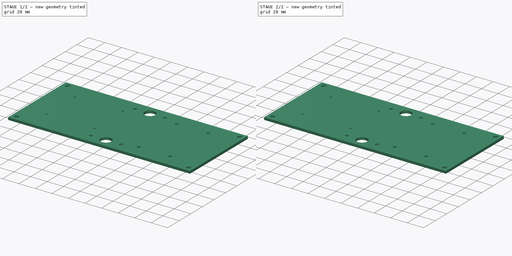
[diagram: build sequence overview — one tinted view per stage of 2, left to right]
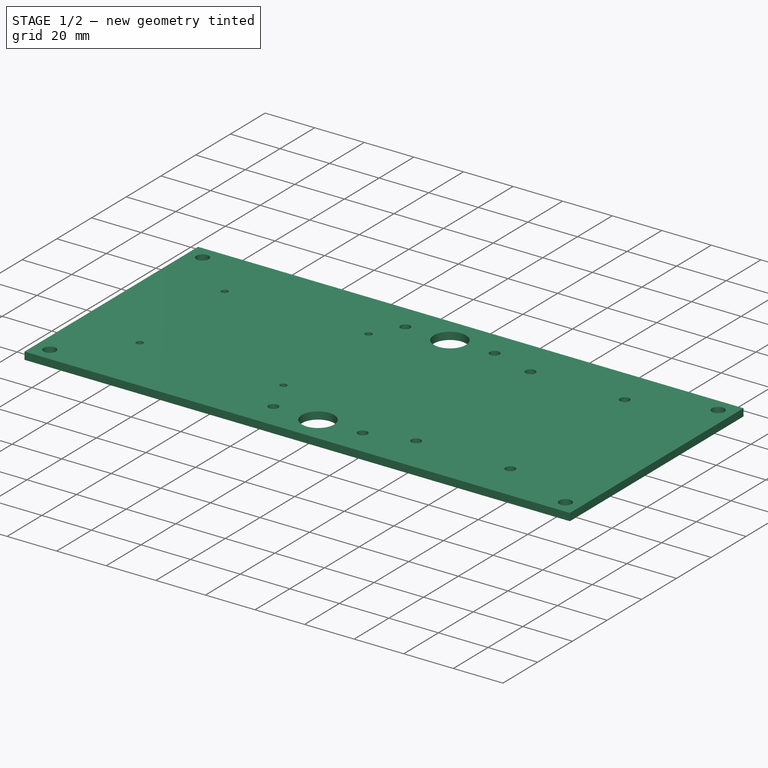
[diagram: stage 1 of 2 — iso view after this stage's code; geometry added in this stage tinted green]
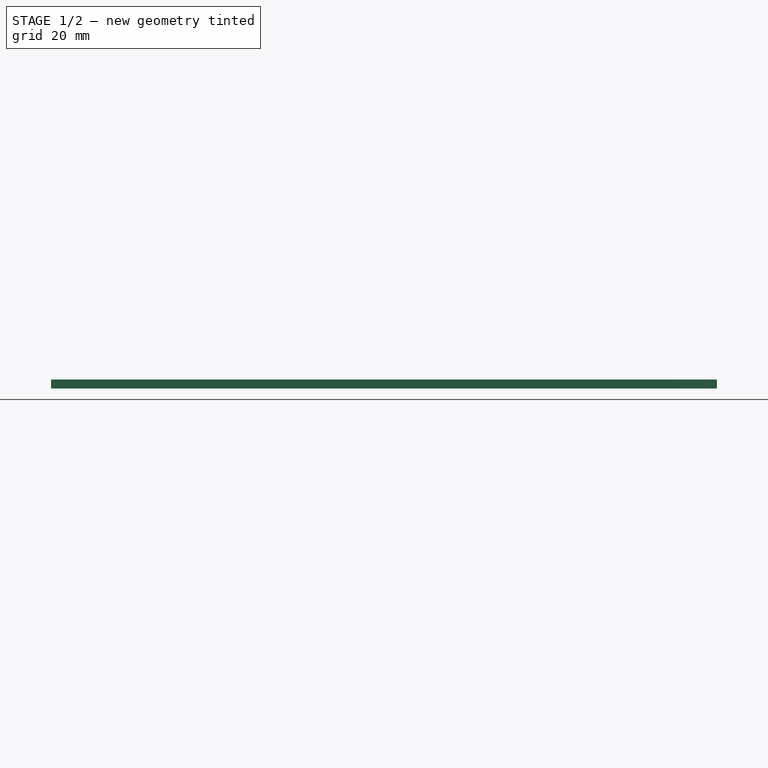
[diagram: stage 1 of 2 — front view after this stage's code; geometry added in this stage tinted green]
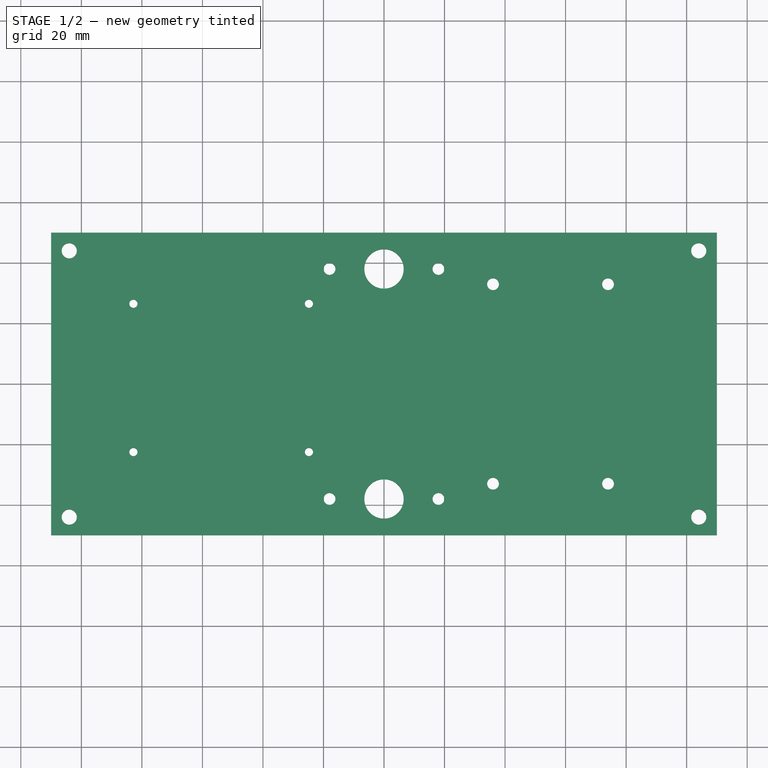
[diagram: stage 1 of 2 — top view after this stage's code; geometry added in this stage tinted green]
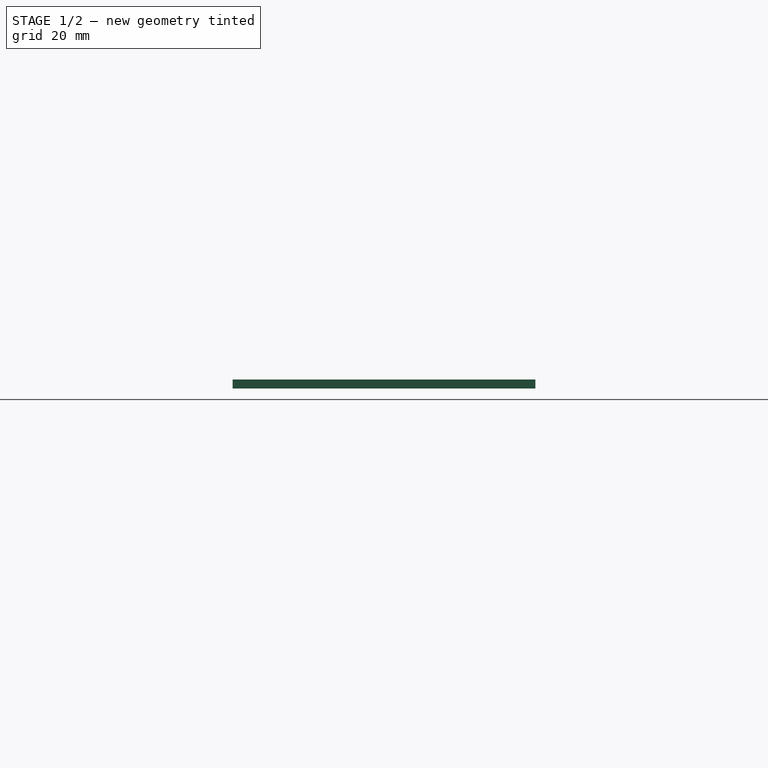
[diagram: stage 1 of 2 — right view after this stage's code; geometry added in this stage tinted green]
FCSTD DOCUMENT  (FreeCAD 1.0R39109 (Git))
Label: cam_holder_plate
License: All rights reserved
LicenseURL: https://en.wikipedia.org/wiki/All_rights_reserved
objects: Sketcher::SketchObject×2, PartDesign::Pad×2, PartDesign::Body×1
note: 11 computed .brp shape members not serialized (recipe doc carries the construction recipe); baked Part::Feature solids carry a one-line shape summary decoded from their .brp

FEATURE [Sketcher::SketchObject] Sketch
  ArcFitTolerance = 1e-06
  AttachmentSupport = -> [XY_Plane]
  FullyConstrained = false
  MakeInternals = false
  MapMode = 5
  sketch-geometry (25):
    g0: LineSegment StartX=-110 StartY=50 StartZ=0 EndX=-110 EndY=-50 EndZ=0
    g1: LineSegment StartX=-110 StartY=-50 StartZ=0 EndX=110 EndY=-50 EndZ=0
    g2: LineSegment StartX=110 StartY=-50 StartZ=0 EndX=110 EndY=50 EndZ=0
    g3: LineSegment StartX=110 StartY=50 StartZ=0 EndX=-110 EndY=50 EndZ=0
    g4: GeomPoint [constr] X=0 Y=0 Z=0
    g5: Circle CenterX=-82.8 CenterY=26.5 CenterZ=0 NormalX=0 NormalY=0 NormalZ=1 AngleXU=0 Radius=1.35
    g6: Circle CenterX=-82.8 CenterY=-22.5 CenterZ=0 NormalX=0 NormalY=0 NormalZ=1 AngleXU=0 Radius=1.35
    g7: Circle CenterX=-24.8 CenterY=-22.5 CenterZ=0 NormalX=0 NormalY=0 NormalZ=1 AngleXU=0 Radius=1.35
    g8: Circle CenterX=-24.8 CenterY=26.5 CenterZ=0 NormalX=0 NormalY=0 NormalZ=1 AngleXU=0 Radius=1.35
    g9: Circle CenterX=36.0311 CenterY=32.96 CenterZ=0 NormalX=0 NormalY=0 NormalZ=1 AngleXU=0 Radius=1.95
    g10: Circle CenterX=36.0311 CenterY=-32.96 CenterZ=0 NormalX=0 NormalY=0 NormalZ=1 AngleXU=0 Radius=1.95
    g11: Circle CenterX=74.0311 CenterY=32.96 CenterZ=0 NormalX=0 NormalY=0 NormalZ=1 AngleXU=0 Radius=1.95
    g12: Circle CenterX=74.0311 CenterY=-32.96 CenterZ=0 NormalX=0 NormalY=0 NormalZ=1 AngleXU=0 Radius=1.95
    g13: Circle CenterX=-104 CenterY=-44 CenterZ=0 NormalX=0 NormalY=0 NormalZ=1 AngleXU=0 Radius=2.5
    g14: Circle CenterX=-104 CenterY=44 CenterZ=0 NormalX=0 NormalY=0 NormalZ=1 AngleXU=0 Radius=2.5
    g15: Circle CenterX=104 CenterY=44 CenterZ=0 NormalX=0 NormalY=0 NormalZ=1 AngleXU=0 Radius=2.5
    g16: Circle CenterX=104 CenterY=-44 CenterZ=0 NormalX=0 NormalY=0 NormalZ=1 AngleXU=0 Radius=2.5
    g17: Circle CenterX=0 CenterY=-38 CenterZ=0 NormalX=0 NormalY=0 NormalZ=1 AngleXU=0 Radius=6.5
    g18: Circle CenterX=18 CenterY=-38 CenterZ=0 NormalX=0 NormalY=0 NormalZ=1 AngleXU=0 Radius=1.95
    g19: Circle CenterX=-18 CenterY=-38 CenterZ=0 NormalX=0 NormalY=0 NormalZ=1 AngleXU=0 Radius=1.95
    g20: Circle CenterX=0 CenterY=38 CenterZ=0 NormalX=0 NormalY=0 NormalZ=1 AngleXU=0 Radius=6.5
    g21: Circle CenterX=18 CenterY=38 CenterZ=0 NormalX=0 NormalY=0 NormalZ=1 AngleXU=0 Radius=1.95
    g22: Circle CenterX=-18 CenterY=38 CenterZ=0 NormalX=0 NormalY=0 NormalZ=1 AngleXU=0 Radius=1.95
    g23: LineSegment [constr] StartX=-104 StartY=42.1544 StartZ=0 EndX=-104 EndY=53.0988 EndZ=0
    g24: LineSegment [constr] StartX=-108.248 StartY=44 StartZ=0 EndX=-95.3558 EndY=44 EndZ=0
  constraints (66):
    c: Coincident(g0,g1)
    c: Coincident(g1,g2)
    c: Coincident(g2,g3)
    c: Coincident(g3,g0)
    c: Vertical(g0)
    c: Vertical(g2)
    c: Horizontal(g1)
    c: Horizontal(g3)
    c: Symmetric(g2,g0,g4)
    c: Coincident(g4,g-1)
    c: DistanceX(g5,g8) = 58
    c: Horizontal(g8,g5)
    c: DistanceY(g6,g5) = 49
    c: Diameter(g5) = 2.7
    c: Equal(g5,g6)
    c: Equal(g6,g7)
    c: Equal(g7,g8)
    c: Horizontal(g9,g11)
    c: Horizontal(g10,g12)
    c: Vertical(g9,g10)
    c: Vertical(g11,g12)
    c: Equal(g9,g11)
    c: Equal(g11,g10)
    c: Equal(g10,g12)
    c: Diameter(g9) = 3.9
    c: DistanceX(g9,g11) = 38
    c: DistanceY(g10,g9) = 65.92
    c: Distance(g0,g0) = 100
    c: DistanceX(g3,g3) = 220
    c: Horizontal(g16,g13)
    c: Vertical(g16,g15)
    c: Equal(g14,g13)
    c: Equal(g15,g14)
    c: Equal(g16,g15)
    c: Diameter(g14) = 5
    c: DistanceY(g14,g0) = 6
    c: DistanceX(g0,g14) = 6
    c: Symmetric(g14,g15,g-2)
    c: Symmetric(g13,g14,g-1)
    c: Horizontal(g6,g7)
    c: Vertical(g5,g6)
    c: PointOnObject(g17,g-2)
    c: Horizontal(g19,g17)
    c: Horizontal(g17,g18)
    c: DistanceX(g19,g17) = 18
    c: DistanceX(g17,g18) = 18
    c: Diameter(g19) = 3.9
    c: Diameter(g17) = 13
    c: Vertical(g7,g8)
    c: Horizontal(g20,g22)
    c: Horizontal(g22,g21)
    c: Equal(g21,g18)
    c: Equal(g20,g17)
    c: Distance(g17,g1) = 12
    c: Equal(g18,g19)
    c: Symmetric(g17,g20,g-1)
    c: Equal(g22,g19)
    c: Vertical(g19,g22)
    c: Vertical(g21,g18)
    c: PointOnObject(g14,g23)
    c: Vertical(g23)
    c: Horizontal(g24)
    c: PointOnObject(g14,g24)
    c: Distance(g5,g23) = 21.2
    c: Distance(g5,g24) = 17.5
    c: Distance(g9,g-1) = 32.96
FEATURE [PartDesign::Pad] Pad
  Direction = (0,0,1)
  Length = 3
  Length2 = 10
  Profile = -> Sketch
  ReferenceAxis = -> Sketch [N_Axis]
  Refine = true
  Suppressed = false
  Type = 0
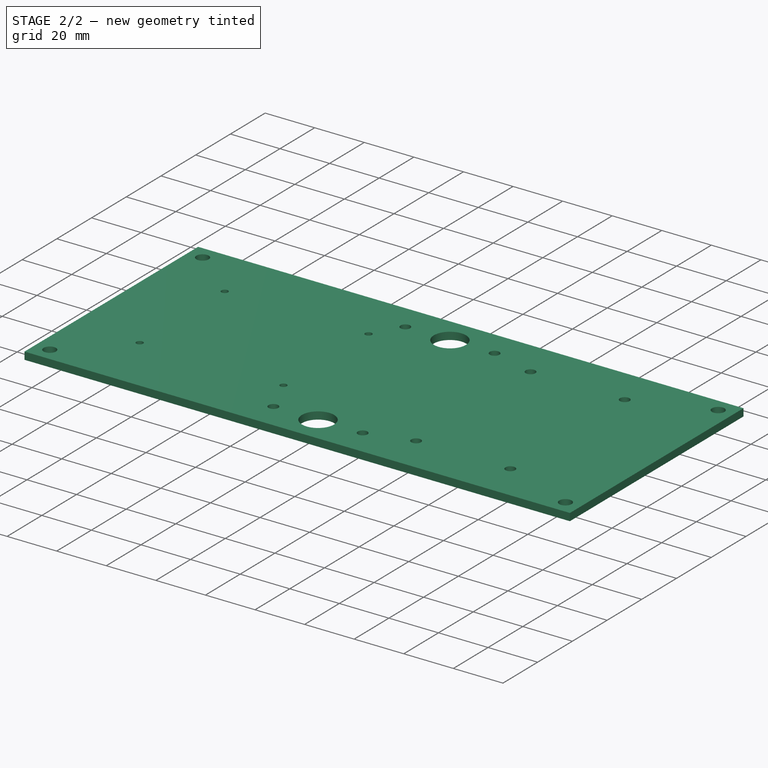
[diagram: stage 2 of 2 — iso view after this stage's code; geometry added in this stage tinted green]
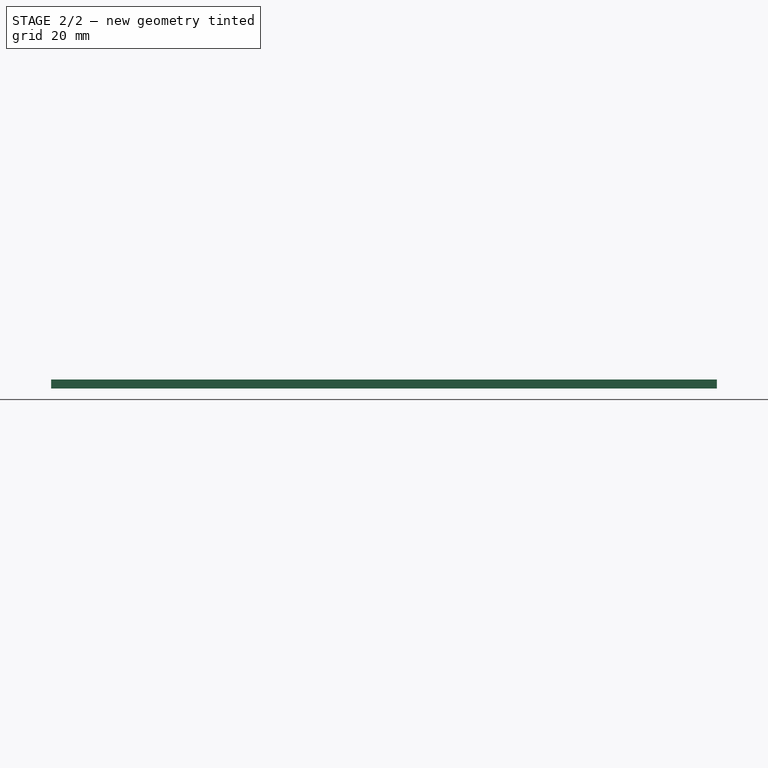
[diagram: stage 2 of 2 — front view after this stage's code; geometry added in this stage tinted green]
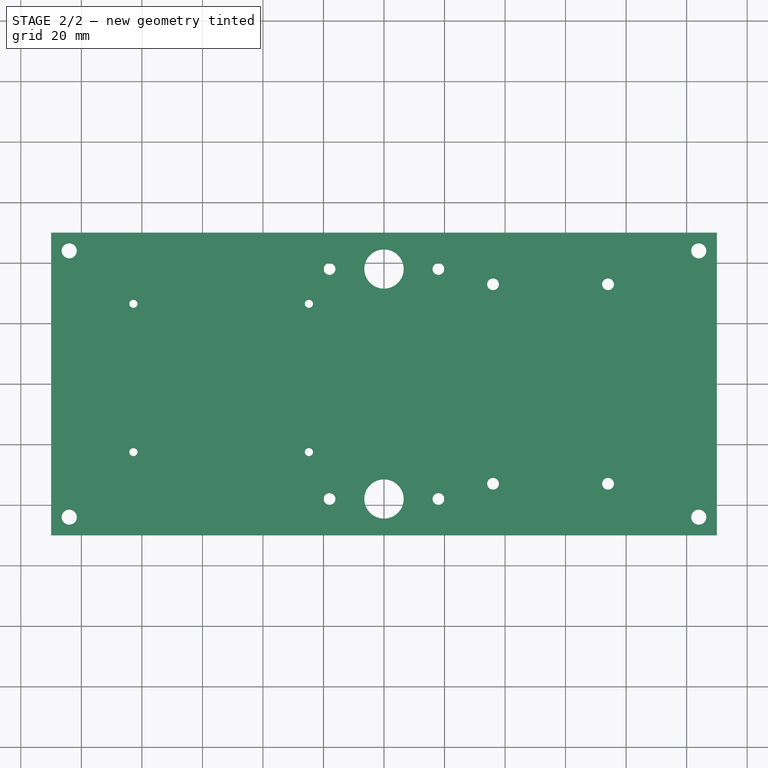
[diagram: stage 2 of 2 — top view after this stage's code; geometry added in this stage tinted green]
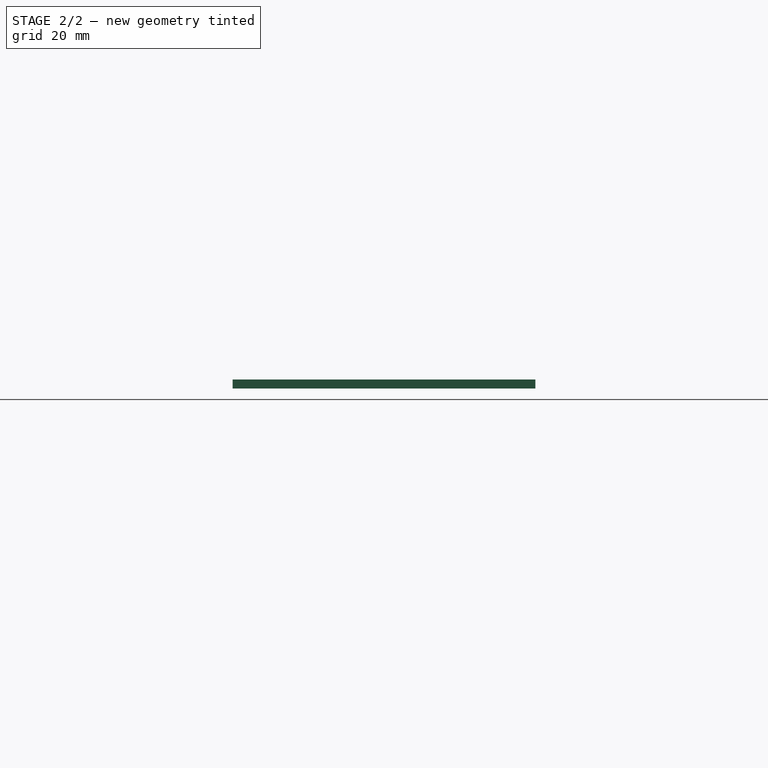
[diagram: stage 2 of 2 — right view after this stage's code; geometry added in this stage tinted green]
FEATURE [Sketcher::SketchObject] Sketch002
  ArcFitTolerance = 1e-06
  FullyConstrained = true
  MakeInternals = false
  MapMode = 5
  Placement = pos=(0,0,5) rot=(0,0,1;0rad)
  sketch-geometry (8):
    g0: Circle CenterX=-82.8 CenterY=26.5 CenterZ=0 NormalX=0 NormalY=0 NormalZ=1 AngleXU=0 Radius=1.35
    g1: Circle CenterX=-24.8 CenterY=26.5 CenterZ=0 NormalX=0 NormalY=0 NormalZ=1 AngleXU=0 Radius=1.35
    g2: Circle CenterX=-24.8 CenterY=-22.5 CenterZ=0 NormalX=0 NormalY=0 NormalZ=1 AngleXU=0 Radius=1.35
    g3: Circle CenterX=-82.8 CenterY=-22.5 CenterZ=0 NormalX=0 NormalY=0 NormalZ=1 AngleXU=0 Radius=1.35
    g4: Circle CenterX=-82.8 CenterY=26.5 CenterZ=0 NormalX=0 NormalY=0 NormalZ=1 AngleXU=0 Radius=3.85
    g5: Circle CenterX=-24.8 CenterY=26.5 CenterZ=0 NormalX=0 NormalY=0 NormalZ=1 AngleXU=0 Radius=3.85
    g6: Circle CenterX=-24.8 CenterY=-22.5 CenterZ=0 NormalX=0 NormalY=0 NormalZ=1 AngleXU=0 Radius=3.85
    g7: Circle CenterX=-82.8 CenterY=-22.5 CenterZ=0 NormalX=0 NormalY=0 NormalZ=1 AngleXU=0 Radius=3.85
  constraints (16):
    c: Coincident(g0,g-3)
    c: Equal(g0,g-3)
    c: Coincident(g1,g-5)
    c: Equal(g1,g-5)
    c: Coincident(g2,g-6)
    c: Equal(g2,g-6)
    c: Coincident(g3,g-7)
    c: Equal(g3,g-7)
    c: Coincident(g4,g0)
    c: Distance(g0,g4) = 2.5
    c: Coincident(g5,g1)
    c: Coincident(g6,g2)
    c: Coincident(g7,g3)
    c: Equal(g4,g7)
    c: Equal(g7,g6)
    c: Equal(g6,g5)
FEATURE [PartDesign::Pad] Pad001
  BaseFeature = -> Pad
  Direction = (0,0,1)
  Length = 5
  Length2 = 10
  Profile = -> Sketch002
  ReferenceAxis = -> Sketch002 [N_Axis]
  Refine = true
  Suppressed = false
  Type = 0
FEATURE [PartDesign::Body] Body  label="cam_holder_plate"
  AllowCompound = false
  Group = -> [Sketch,Pad,Sketch002,Pad001]
  Origin = -> Origin
  Tip = -> Pad001
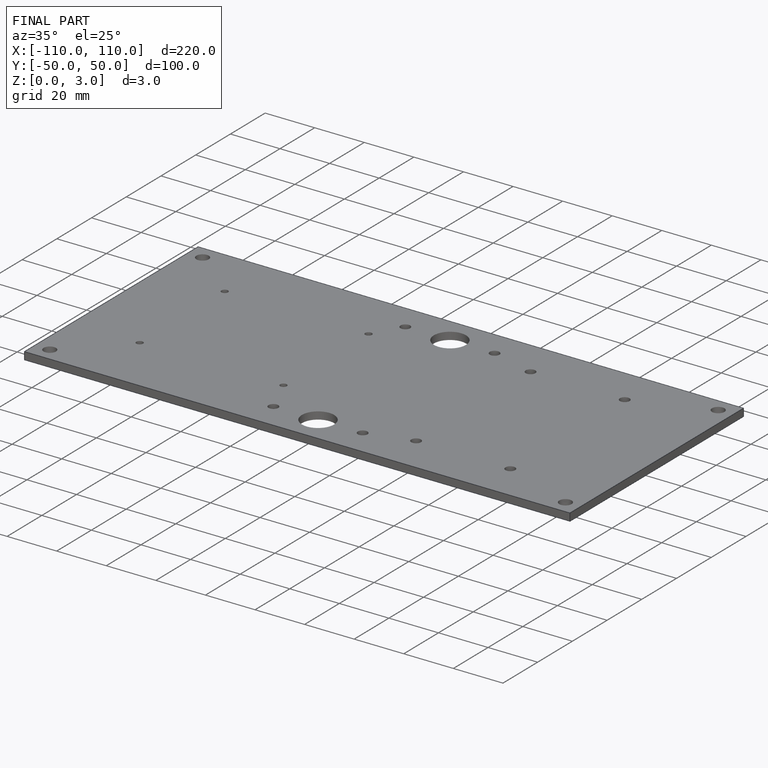
[diagram: finished part — iso view with bounding-box wireframe]
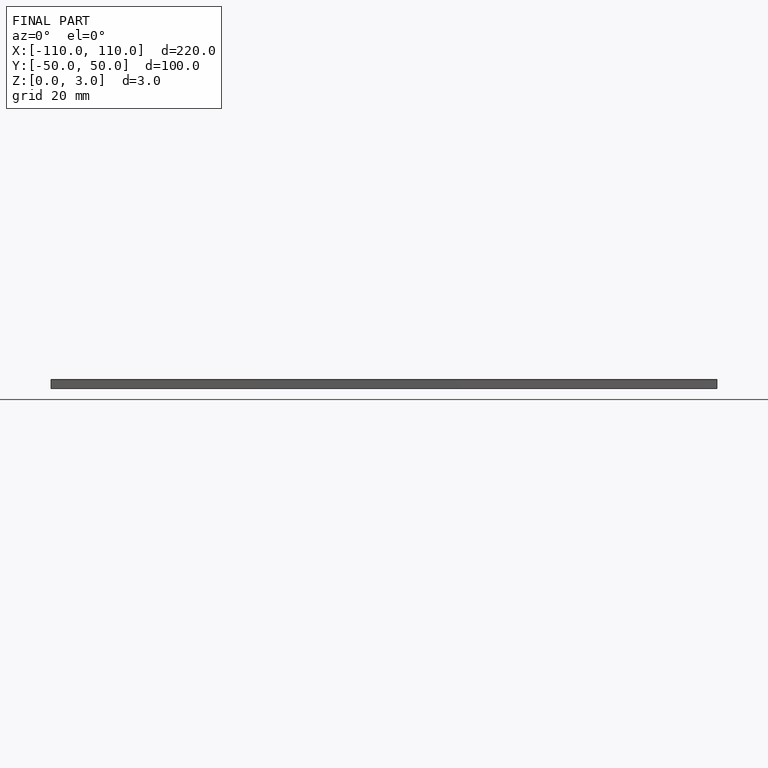
[diagram: finished part — front view with bounding-box wireframe]
